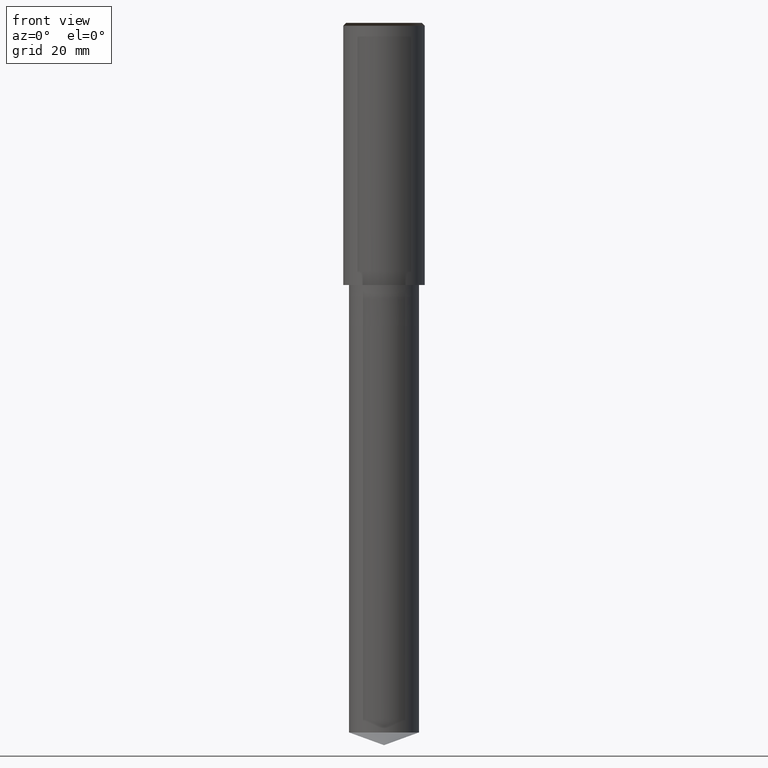
[diagram: clean part render]
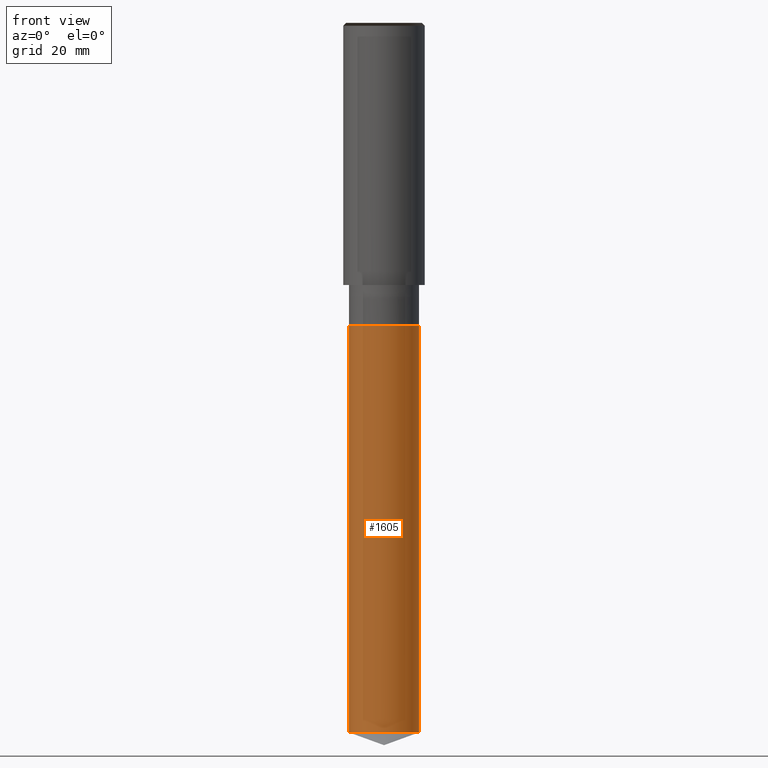
[diagram: same view with one face highlighted and labeled with its STEP entity id]
A machine part, front view. The second image highlights one B-rep face of the part: STEP entity #1605.
In plain terms, the highlighted face is a freeform B-spline surface patch.
Its self-contained STEP definition (entity closure, byte-faithful):
#1455=CARTESIAN_POINT('',(6.0,0.0,-76.816178594403));
#1459=CARTESIAN_POINT('',(-6.0,0.0,-76.816178594403));
#1460=CARTESIAN_POINT('',(6.0,0.0,-7.0));
#1464=CARTESIAN_POINT('',(-6.0,0.0,-7.0));
#1466=CARTESIAN_POINT('',(-6.0,-6.0,-76.816178594403));
#1467=CARTESIAN_POINT('',(0.0,-6.0,-76.816178594403));
#1468=CARTESIAN_POINT('',(6.0,-6.0,-76.816178594403));
#1469=CARTESIAN_POINT('',(-6.0,-6.0,-7.0));
#1470=CARTESIAN_POINT('',(0.0,-6.0,-7.0));
#1471=CARTESIAN_POINT('',(6.0,-6.0,-7.0));
#1586=(
BOUNDED_SURFACE()
B_SPLINE_SURFACE(1,2,(
(#1459,#1466,#1467,#1468,#1455),
(#1464,#1469,#1470,#1471,#1460)
), .UNSPECIFIED.,.F.,.F.,.F.)
B_SPLINE_SURFACE_WITH_KNOTS((2,2),(3,2,3),(
0.0,1.0),(
0.0,0.5,1.0), .UNSPECIFIED.)
GEOMETRIC_REPRESENTATION_ITEM()
RATIONAL_B_SPLINE_SURFACE(((1.0,0.707106781187,1.0,0.707106781187,1.0),
(1.0,0.707106781187,1.0,0.707106781187,1.0)
))
REPRESENTATION_ITEM('')
SURFACE()
);
#1587=(
BOUNDED_CURVE()
B_SPLINE_CURVE(2,(#1455,#1468,#1467,#1466,#1459),.UNSPECIFIED.,.F.,.F.)
B_SPLINE_CURVE_WITH_KNOTS((3,2,3),
(0.0,0.5,1.0),.UNSPECIFIED.)
CURVE()
GEOMETRIC_REPRESENTATION_ITEM()
RATIONAL_B_SPLINE_CURVE((1.0,0.707106781187,1.0,0.707106781187,1.0))
REPRESENTATION_ITEM('')
);
#1588=(
BOUNDED_CURVE()
B_SPLINE_CURVE(1,(#1459,#1464),.UNSPECIFIED.,.F.,.F.)
B_SPLINE_CURVE_WITH_KNOTS((2,2),
(0.0,1.0),.UNSPECIFIED.)
CURVE()
GEOMETRIC_REPRESENTATION_ITEM()
RATIONAL_B_SPLINE_CURVE((1.0,1.0))
REPRESENTATION_ITEM('')
);
#1589=(
BOUNDED_CURVE()
B_SPLINE_CURVE(2,(#1464,#1469,#1470,#1471,#1460),.UNSPECIFIED.,.F.,.F.)
B_SPLINE_CURVE_WITH_KNOTS((3,2,3),
(0.0,0.5,1.0),.UNSPECIFIED.)
CURVE()
GEOMETRIC_REPRESENTATION_ITEM()
RATIONAL_B_SPLINE_CURVE((1.0,0.707106781187,1.0,0.707106781187,1.0))
REPRESENTATION_ITEM('')
);
#1590=(
BOUNDED_CURVE()
B_SPLINE_CURVE(1,(#1460,#1455),.UNSPECIFIED.,.F.,.F.)
B_SPLINE_CURVE_WITH_KNOTS((2,2),
(0.0,1.0),.UNSPECIFIED.)
CURVE()
GEOMETRIC_REPRESENTATION_ITEM()
RATIONAL_B_SPLINE_CURVE((1.0,1.0))
REPRESENTATION_ITEM('')
);
#1591=VERTEX_POINT('',#1455);
#1592=VERTEX_POINT('',#1459);
#1593=VERTEX_POINT('',#1460);
#1594=VERTEX_POINT('',#1464);
#1595=EDGE_CURVE('',#1591,#1592,#1587,.T.);
#1596=EDGE_CURVE('',#1592,#1594,#1588,.T.);
#1597=EDGE_CURVE('',#1594,#1593,#1589,.T.);
#1598=EDGE_CURVE('',#1593,#1591,#1590,.T.);
#1599=ORIENTED_EDGE('',*,*,#1595,.T.);
#1600=ORIENTED_EDGE('',*,*,#1596,.T.);
#1601=ORIENTED_EDGE('',*,*,#1597,.T.);
#1602=ORIENTED_EDGE('',*,*,#1598,.T.);
#1603=EDGE_LOOP('',(#1599,#1600,#1601,#1602));
#1604=FACE_OUTER_BOUND('',#1603,.T.);
#1605=ADVANCED_FACE('',(#1604),#1586,.T.);